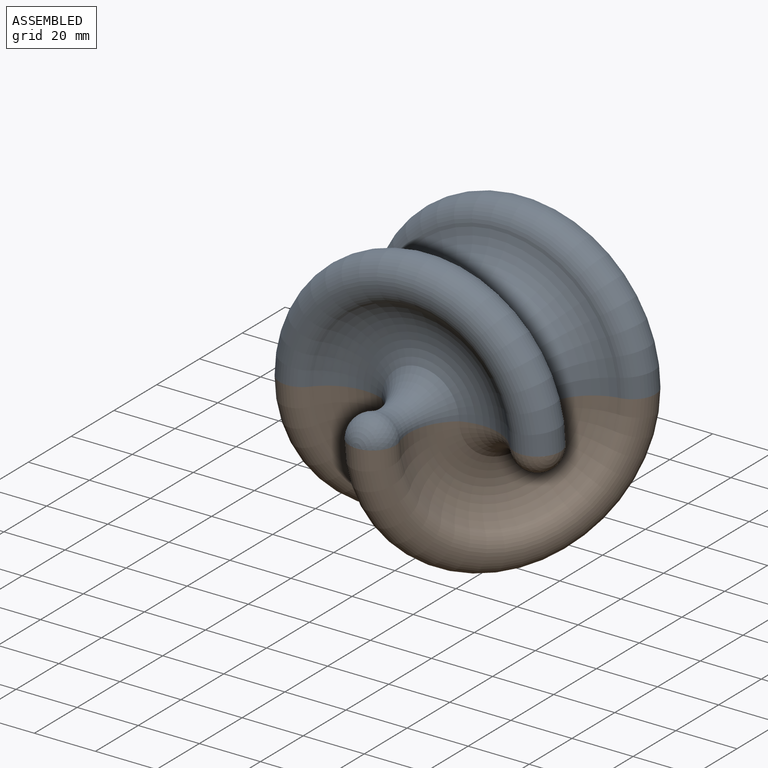
[diagram: assembled view]
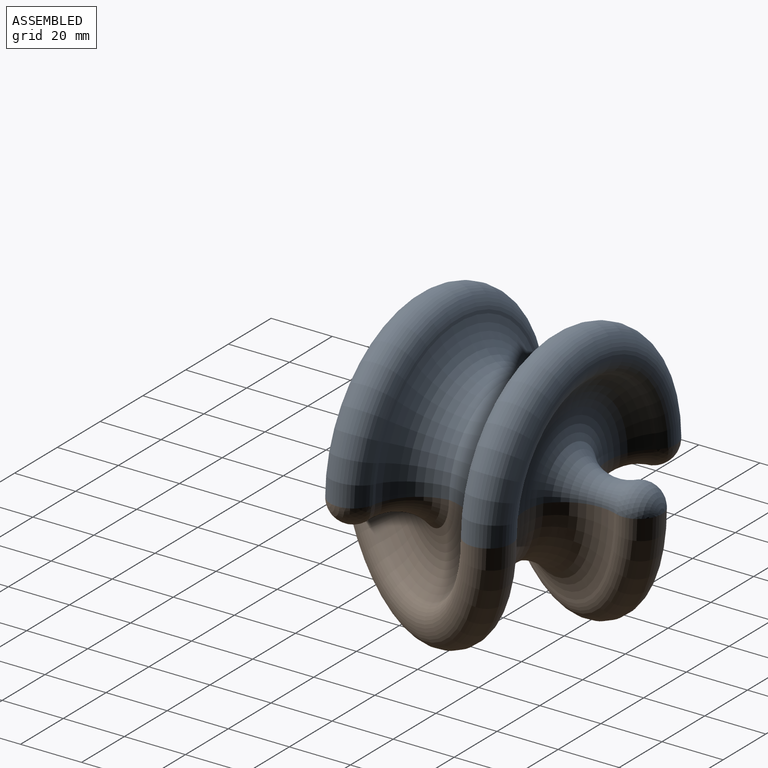
[diagram: assembled view, second angle]
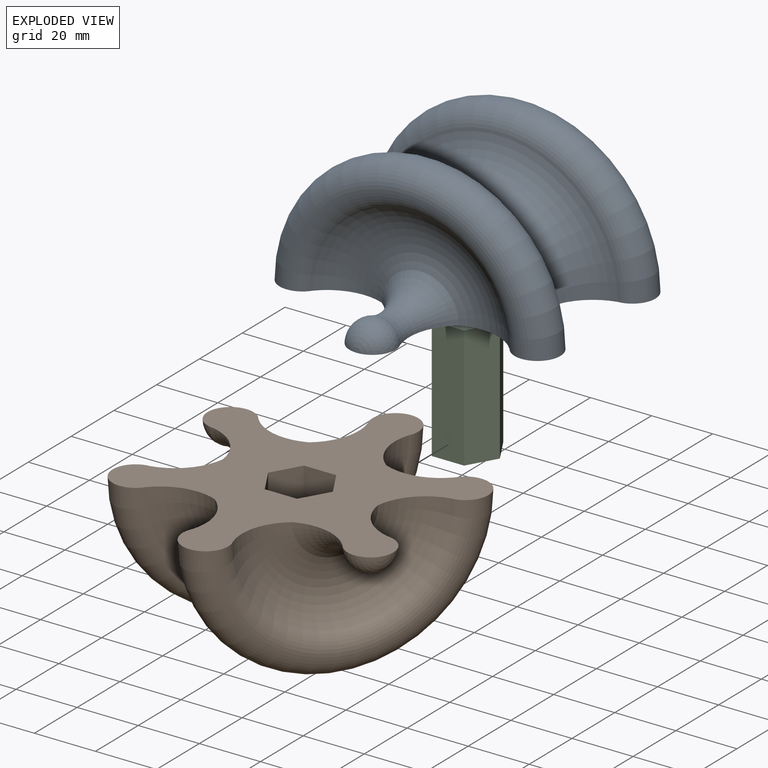
[diagram: exploded view]
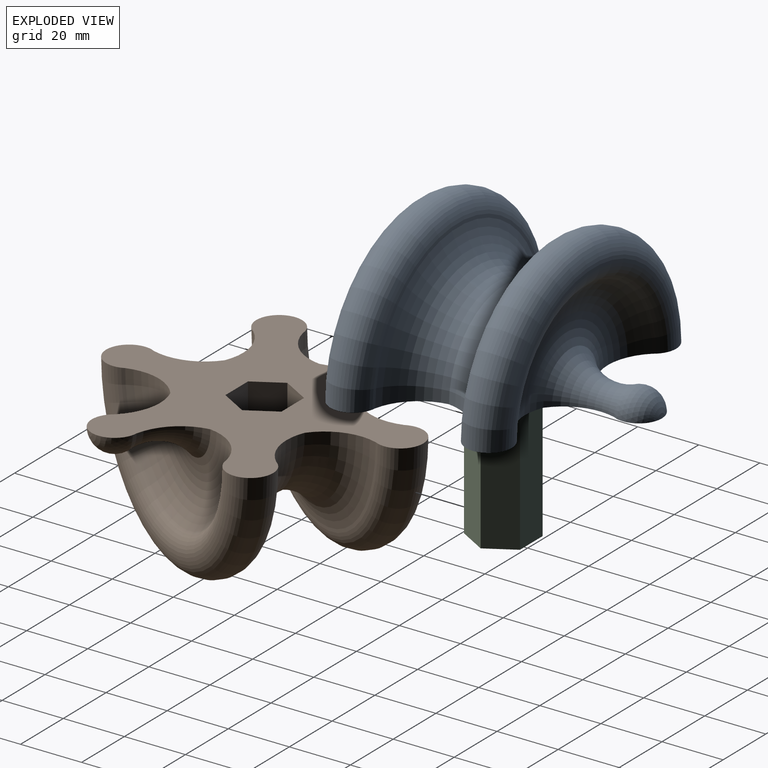
[diagram: exploded view, second angle]
ASSEMBLY  parts=3 mates=2
PART A: 18 faces, bbox 99.5x103.8x49.8 mm
  f0: sphere r=7.5mm, area 256.8mm2, adj f1,f10
  f1: torus R=23.18mm, axis (0,-1,0), area 514mm2, adj f0,f2,f10
  f2: torus R=19.39mm, axis (0,-1,0), area 1529.3mm2, adj f1,f3,f10
  f3: torus R=38.47mm, axis (0,-1,0), area 3972.7mm2, adj f2,f4,f10
  f4: torus R=42.57mm, axis (0,-1,0), area 2043.3mm2, adj f3,f5,f10
  f5: torus R=42.57mm, axis (0,-1,0), area 2043.3mm2, adj f4,f6,f10
  f6: torus R=38.47mm, axis (0,-1,0), area 3972.7mm2, adj f5,f7,f10
  f7: torus R=19.39mm, axis (0,-1,0), area 1529.3mm2, adj f6,f8,f10
  f8: torus R=23.18mm, axis (0,-1,0), area 514mm2, adj f7,f9,f10
  f9: sphere r=7.5mm, area 256.8mm2, adj f8,f10
  f10: plane 103.84x91.94mm, normal (0,0,-1), area 3907.6mm2, adj f0,f1,f2,f3,f4,f5,f6,f7
  f11: plane 20x9.17mm, normal (-0.87,0.5,0), area 211.8mm2, adj f10,f12,f16,f17
  f12: plane 20x10.59mm, normal (0,1,0), area 211.8mm2, adj f10,f11,f13,f17
  f13: plane 20x9.17mm, normal (0.87,0.5,0), area 211.8mm2, adj f10,f12,f14,f17
  f14: plane 20x9.17mm, normal (0.87,-0.5,0), area 211.8mm2, adj f10,f13,f15,f17
  f15: plane 20x10.59mm, normal (0,-1,0), area 211.8mm2, adj f10,f14,f16,f17
  f16: plane 20x9.17mm, normal (-0.87,-0.5,0), area 211.8mm2, adj f10,f11,f15,f17
  f17: plane 21.18x18.34mm, normal (0,0,-1), area 291.3mm2, adj f11,f12,f13,f14,f15,f16
PART B: same geometry as A
PART C: 8 faces, bbox 21.2x18.3x40 mm
  f0: plane 40x9.17mm, normal (-0.87,-0.5,0), area 423.5mm2, adj f1,f5,f6,f7
  f1: plane 40x10.59mm, normal (0,-1,0), area 423.5mm2, adj f0,f2,f6,f7
  f2: plane 40x9.17mm, normal (0.87,-0.5,0), area 423.5mm2, adj f1,f3,f6,f7
  f3: plane 40x9.17mm, normal (0.87,0.5,0), area 423.5mm2, adj f2,f4,f6,f7
  f4: plane 40x10.59mm, normal (0,1,0), area 423.5mm2, adj f3,f5,f6,f7
  f5: plane 40x9.17mm, normal (-0.87,0.5,0), area 423.5mm2, adj f0,f4,f6,f7
  f6: plane 21.18x18.34mm, normal (0,0,1), area 291.3mm2, adj f0,f1,f2,f3,f4,f5
  f7: plane 21.18x18.34mm, normal (0,0,-1), area 291.3mm2, adj f0,f1,f2,f3,f4,f5
PLACE A t=(26.55,4.63,-16.05)mm
PLACE B rot(axis=(-0.5,0.87,0),180deg) t=(26.55,4.63,-16.05)mm
PLACE C t=(-33.78,-44.19,-36.05)mm
MATE fastened A.f17 <-> C.f6  axis (0,0,-1) through (26.55,4.63,3.95)mm
MATE fastened B.f11 <-> C.f1  axis (0,1,0) through (26.55,-4.54,-16.05)mm
